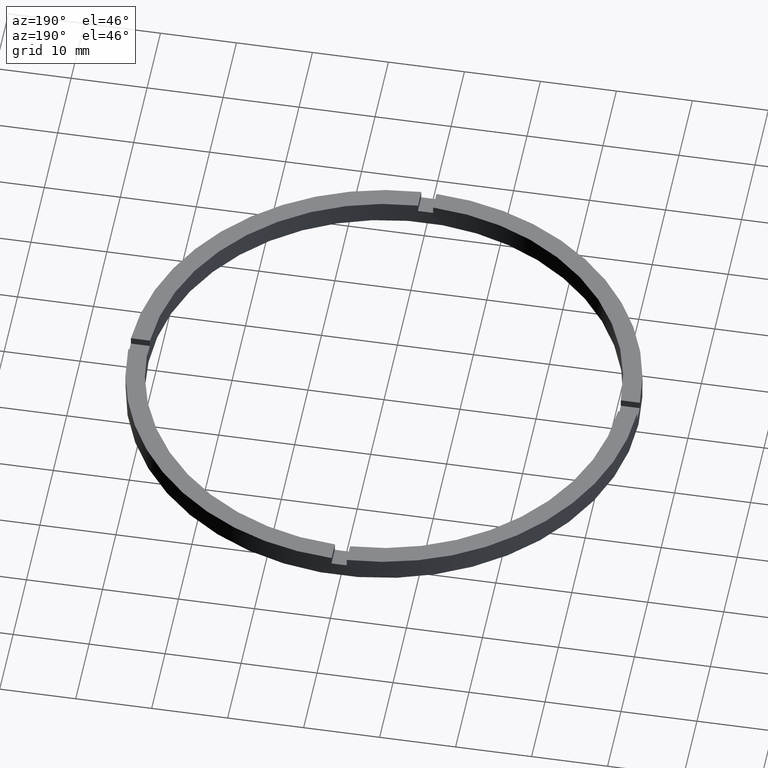
[diagram: clean part render]
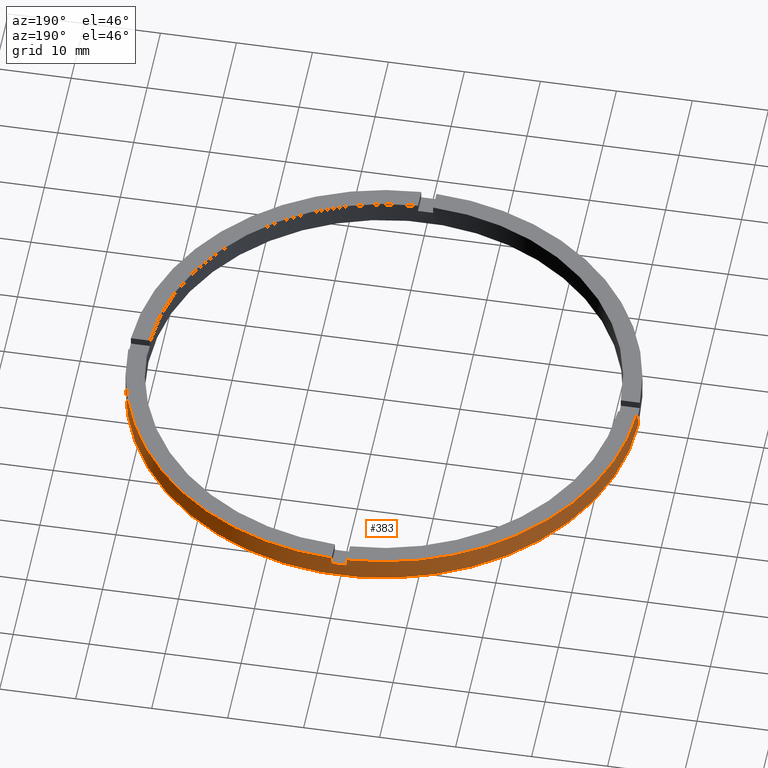
[diagram: same view with one face highlighted and labeled with its STEP entity id]
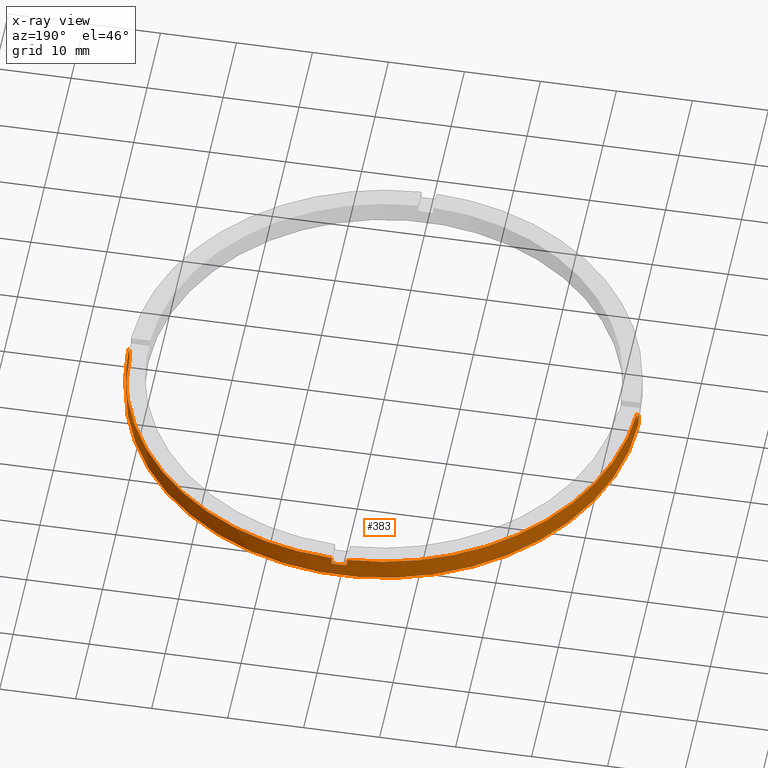
[diagram: x-ray of the same camera — body ghosted, the highlighted face saturated]
A machine part, auxiliary view. The second image highlights one B-rep face of the part: STEP entity #383.
The next image is the same camera in x-ray: the body ghosted, the highlighted face saturated — about 0% of this face is hidden behind the body in this view.
In plain terms, the highlighted cylindrical surface (partial cylindrical patch) has radius 33.5 mm, axis along (-0, -0, -1).
Its self-contained STEP definition (entity closure, byte-faithful):
#7 = AXIS2_PLACEMENT_3D ( 'NONE', #759, #772, #29 ) ;
#12 = ORIENTED_EDGE ( 'NONE', *, *, #683, .F. ) ;
#20 = ORIENTED_EDGE ( 'NONE', *, *, #349, .T. ) ;
#27 = AXIS2_PLACEMENT_3D ( 'NONE', #710, #407, #569 ) ;
#29 = DIRECTION ( 'NONE',  ( 1.000000000000000000, 0.000000000000000000, 0.000000000000000000 ) ) ;
#41 = EDGE_CURVE ( 'NONE', #592, #596, #735, .T. ) ;
#50 = AXIS2_PLACEMENT_3D ( 'NONE', #278, #390, #521 ) ;
#51 = CARTESIAN_POINT ( 'NONE',  ( -33.48507130050644776, 0.9999999999999735767, 3.000000000000000000 ) ) ;
#54 = DIRECTION ( 'NONE',  ( -0.000000000000000000, -0.000000000000000000, -1.000000000000000000 ) ) ;
#65 = VERTEX_POINT ( 'NONE', #139 ) ;
#77 = VECTOR ( 'NONE', #99, 1000.000000000000000 ) ;
#86 = AXIS2_PLACEMENT_3D ( 'NONE', #578, #657, #402 ) ;
#99 = DIRECTION ( 'NONE',  ( -0.000000000000000000, -0.000000000000000000, -1.000000000000000000 ) ) ;
#106 = CARTESIAN_POINT ( 'NONE',  ( 0.9999999999999753530, 33.48507130050644776, 3.000000000000000000 ) ) ;
#114 = CARTESIAN_POINT ( 'NONE',  ( -33.50000000000000000, 0.000000000000000000, 2.000000000000000000 ) ) ;
#123 = DIRECTION ( 'NONE',  ( 0.000000000000000000, 0.000000000000000000, 1.000000000000000000 ) ) ;
#126 = EDGE_CURVE ( 'NONE', #488, #316, #741, .T. ) ;
#130 = CARTESIAN_POINT ( 'NONE',  ( -1.000000000000024647, 33.48507130050644065, 3.000000000000000000 ) ) ;
#131 = DIRECTION ( 'NONE',  ( 0.000000000000000000, -0.000000000000000000, 1.000000000000000000 ) ) ;
#134 = CARTESIAN_POINT ( 'NONE',  ( 33.48507130050644776, 0.9999999999998416822, 3.000000000000000000 ) ) ;
#137 = EDGE_CURVE ( 'NONE', #704, #331, #215, .T. ) ;
#139 = CARTESIAN_POINT ( 'NONE',  ( 0.9999999999999753530, 33.48507130050644776, 3.000000000000000000 ) ) ;
#165 = EDGE_CURVE ( 'NONE', #592, #674, #744, .T. ) ;
#170 = EDGE_CURVE ( 'NONE', #669, #596, #750, .T. ) ;
#174 = ORIENTED_EDGE ( 'NONE', *, *, #165, .F. ) ;
#177 = ORIENTED_EDGE ( 'NONE', *, *, #547, .T. ) ;
#187 = ORIENTED_EDGE ( 'NONE', *, *, #126, .F. ) ;
#195 = ORIENTED_EDGE ( 'NONE', *, *, #41, .T. ) ;
#215 = LINE ( 'NONE', #779, #484 ) ;
#224 = CARTESIAN_POINT ( 'NONE',  ( 0.9999999999999753530, 33.48507130050644776, 2.000000000000000000 ) ) ;
#227 = VERTEX_POINT ( 'NONE', #689 ) ;
#228 = DIRECTION ( 'NONE',  ( 0.000000000000000000, 0.000000000000000000, 1.000000000000000000 ) ) ;
#238 = CIRCLE ( 'NONE', #86, 33.50000000000000000 ) ;
#259 = DIRECTION ( 'NONE',  ( -0.000000000000000000, -0.000000000000000000, -1.000000000000000000 ) ) ;
#267 = CARTESIAN_POINT ( 'NONE',  ( 33.50000000000000000, 4.102566777143633774E-15, 3.000000000000000000 ) ) ;
#278 = CARTESIAN_POINT ( 'NONE',  ( 0.000000000000000000, 0.000000000000000000, 3.000000000000000000 ) ) ;
#286 = EDGE_CURVE ( 'NONE', #524, #488, #464, .T. ) ;
#290 = DIRECTION ( 'NONE',  ( 0.000000000000000000, 0.000000000000000000, 1.000000000000000000 ) ) ;
#298 = CARTESIAN_POINT ( 'NONE',  ( 33.48507130050644776, 0.9999999999998416822, 2.000000000000000000 ) ) ;
#316 = VERTEX_POINT ( 'NONE', #344 ) ;
#319 = ORIENTED_EDGE ( 'NONE', *, *, #661, .T. ) ;
#322 = LINE ( 'NONE', #106, #590 ) ;
#324 = CARTESIAN_POINT ( 'NONE',  ( -1.000000000000024647, 33.48507130050644065, 2.000000000000000000 ) ) ;
#327 = CARTESIAN_POINT ( 'NONE',  ( -33.50000000000000000, 0.000000000000000000, 3.000000000000000000 ) ) ;
#331 = VERTEX_POINT ( 'NONE', #298 ) ;
#344 = CARTESIAN_POINT ( 'NONE',  ( -33.50000000000000000, 0.000000000000000000, 0.000000000000000000 ) ) ;
#349 = EDGE_CURVE ( 'NONE', #524, #674, #762, .T. ) ;
#354 = LINE ( 'NONE', #267, #77 ) ;
#358 = CIRCLE ( 'NONE', #7, 33.50000000000000000 ) ;
#362 = CARTESIAN_POINT ( 'NONE',  ( -33.48507130050644776, 0.9999999999999735767, 3.000000000000000000 ) ) ;
#374 = DIRECTION ( 'NONE',  ( 1.000000000000000000, 0.000000000000000000, 0.000000000000000000 ) ) ;
#383 = ADVANCED_FACE ( 'NONE', ( #755 ), #757, .T. ) ;
#390 = DIRECTION ( 'NONE',  ( 0.000000000000000000, 0.000000000000000000, 1.000000000000000000 ) ) ;
#393 = EDGE_CURVE ( 'NONE', #227, #316, #238, .T. ) ;
#402 = DIRECTION ( 'NONE',  ( 1.000000000000000000, 0.000000000000000000, 0.000000000000000000 ) ) ;
#407 = DIRECTION ( 'NONE',  ( -0.000000000000000000, -0.000000000000000000, -1.000000000000000000 ) ) ;
#432 = AXIS2_PLACEMENT_3D ( 'NONE', #572, #228, #651 ) ;
#436 = VERTEX_POINT ( 'NONE', #548 ) ;
#451 = VECTOR ( 'NONE', #259, 1000.000000000000000 ) ;
#455 = ORIENTED_EDGE ( 'NONE', *, *, #170, .F. ) ;
#461 = CARTESIAN_POINT ( 'NONE',  ( 0.000000000000000000, 0.000000000000000000, 2.000000000000000000 ) ) ;
#464 = CIRCLE ( 'NONE', #660, 33.50000000000000000 ) ;
#484 = VECTOR ( 'NONE', #687, 1000.000000000000000 ) ;
#488 = VERTEX_POINT ( 'NONE', #114 ) ;
#506 = VECTOR ( 'NONE', #123, 1000.000000000000000 ) ;
#512 = EDGE_LOOP ( 'NONE', ( #12, #319, #713, #187, #540, #20, #174, #195, #455, #177, #546, #711 ) ) ;
#521 = DIRECTION ( 'NONE',  ( 1.000000000000000000, 0.000000000000000000, 0.000000000000000000 ) ) ;
#524 = VERTEX_POINT ( 'NONE', #530 ) ;
#530 = CARTESIAN_POINT ( 'NONE',  ( -33.48507130050644776, 0.9999999999999735767, 2.000000000000000000 ) ) ;
#540 = ORIENTED_EDGE ( 'NONE', *, *, #286, .F. ) ;
#546 = ORIENTED_EDGE ( 'NONE', *, *, #777, .F. ) ;
#547 = EDGE_CURVE ( 'NONE', #669, #65, #322, .T. ) ;
#548 = CARTESIAN_POINT ( 'NONE',  ( 33.50000000000000000, 4.102566777143633774E-15, 2.000000000000000000 ) ) ;
#569 = DIRECTION ( 'NONE',  ( -1.000000000000000000, 0.000000000000000000, 0.000000000000000000 ) ) ;
#570 = CARTESIAN_POINT ( 'NONE',  ( 0.000000000000000000, 0.000000000000000000, 2.000000000000000000 ) ) ;
#572 = CARTESIAN_POINT ( 'NONE',  ( 0.000000000000000000, 0.000000000000000000, 3.000000000000000000 ) ) ;
#578 = CARTESIAN_POINT ( 'NONE',  ( 0.000000000000000000, 0.000000000000000000, 0.000000000000000000 ) ) ;
#584 = CIRCLE ( 'NONE', #50, 33.50000000000000000 ) ;
#590 = VECTOR ( 'NONE', #290, 1000.000000000000000 ) ;
#592 = VERTEX_POINT ( 'NONE', #758 ) ;
#596 = VERTEX_POINT ( 'NONE', #324 ) ;
#632 = AXIS2_PLACEMENT_3D ( 'NONE', #570, #131, #780 ) ;
#651 = DIRECTION ( 'NONE',  ( 1.000000000000000000, 0.000000000000000000, 0.000000000000000000 ) ) ;
#657 = DIRECTION ( 'NONE',  ( 0.000000000000000000, 0.000000000000000000, 1.000000000000000000 ) ) ;
#660 = AXIS2_PLACEMENT_3D ( 'NONE', #461, #663, #374 ) ;
#661 = EDGE_CURVE ( 'NONE', #436, #227, #354, .T. ) ;
#663 = DIRECTION ( 'NONE',  ( 0.000000000000000000, 0.000000000000000000, 1.000000000000000000 ) ) ;
#669 = VERTEX_POINT ( 'NONE', #224 ) ;
#674 = VERTEX_POINT ( 'NONE', #362 ) ;
#683 = EDGE_CURVE ( 'NONE', #436, #331, #358, .T. ) ;
#687 = DIRECTION ( 'NONE',  ( -0.000000000000000000, -0.000000000000000000, -1.000000000000000000 ) ) ;
#689 = CARTESIAN_POINT ( 'NONE',  ( 33.50000000000000000, 4.102566777143633774E-15, 0.000000000000000000 ) ) ;
#704 = VERTEX_POINT ( 'NONE', #134 ) ;
#710 = CARTESIAN_POINT ( 'NONE',  ( 0.000000000000000000, 0.000000000000000000, 3.000000000000000000 ) ) ;
#711 = ORIENTED_EDGE ( 'NONE', *, *, #137, .T. ) ;
#713 = ORIENTED_EDGE ( 'NONE', *, *, #393, .T. ) ;
#735 = LINE ( 'NONE', #130, #451 ) ;
#741 = LINE ( 'NONE', #327, #752 ) ;
#744 = CIRCLE ( 'NONE', #432, 33.50000000000000000 ) ;
#750 = CIRCLE ( 'NONE', #632, 33.50000000000000000 ) ;
#752 = VECTOR ( 'NONE', #54, 1000.000000000000000 ) ;
#755 = FACE_OUTER_BOUND ( 'NONE', #512, .T. ) ;
#757 = CYLINDRICAL_SURFACE ( 'NONE', #27, 33.50000000000000000 ) ;
#758 = CARTESIAN_POINT ( 'NONE',  ( -1.000000000000024647, 33.48507130050644065, 3.000000000000000000 ) ) ;
#759 = CARTESIAN_POINT ( 'NONE',  ( 0.000000000000000000, 0.000000000000000000, 2.000000000000000000 ) ) ;
#762 = LINE ( 'NONE', #51, #506 ) ;
#772 = DIRECTION ( 'NONE',  ( 0.000000000000000000, 0.000000000000000000, 1.000000000000000000 ) ) ;
#777 = EDGE_CURVE ( 'NONE', #704, #65, #584, .T. ) ;
#779 = CARTESIAN_POINT ( 'NONE',  ( 33.48507130050644776, 0.9999999999998416822, 3.000000000000000000 ) ) ;
#780 = DIRECTION ( 'NONE',  ( 1.000000000000000000, 0.000000000000000000, 0.000000000000000000 ) ) ;